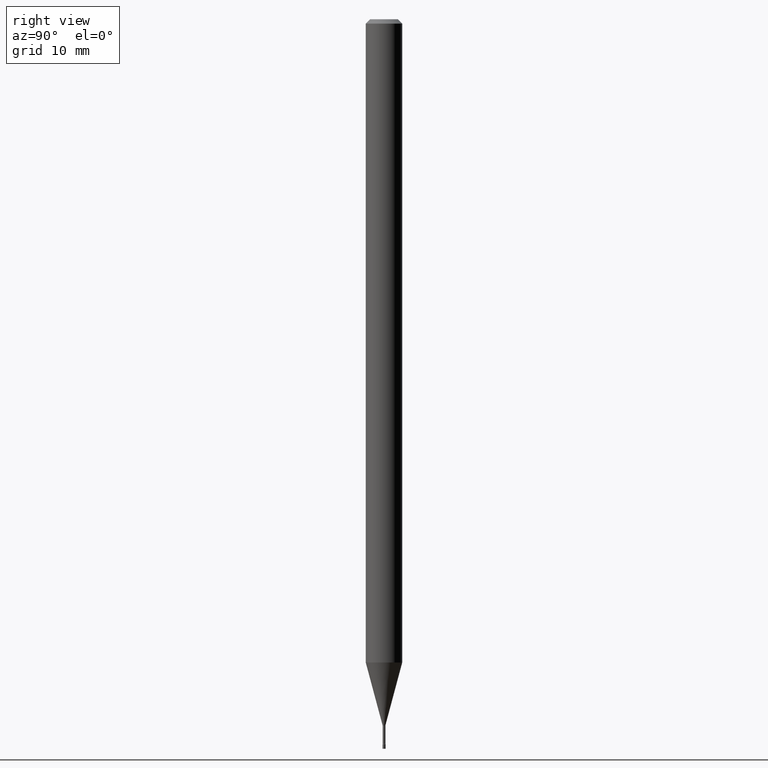
[diagram: clean part render]
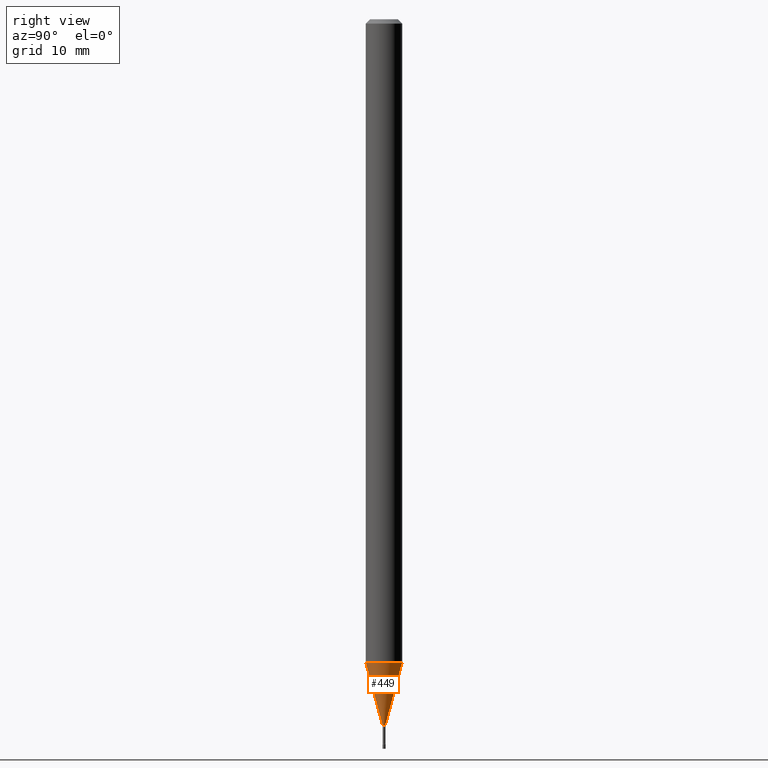
[diagram: same view with one face highlighted and labeled with its STEP entity id]
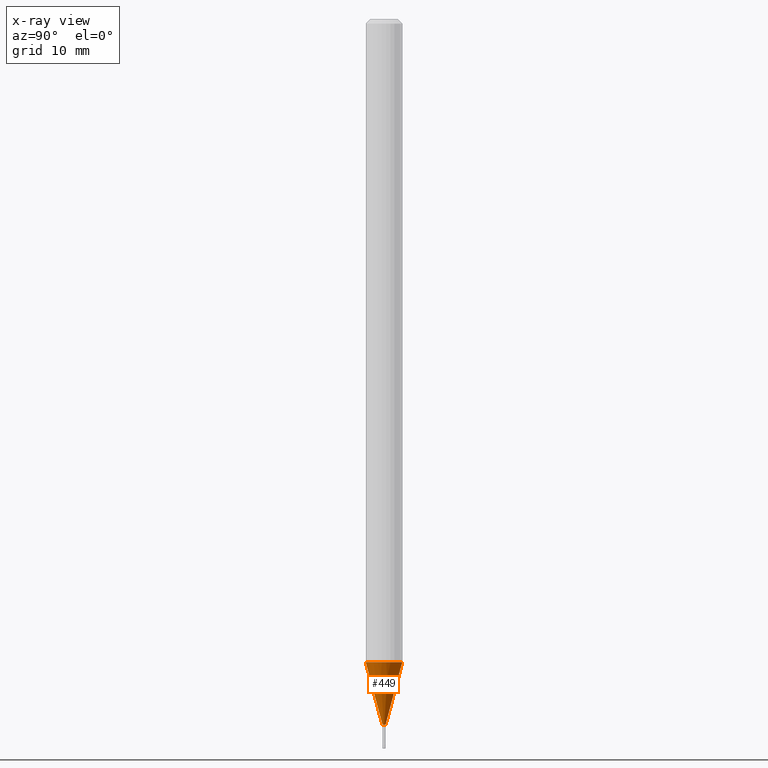
[diagram: x-ray of the same camera — body ghosted, the highlighted face saturated]
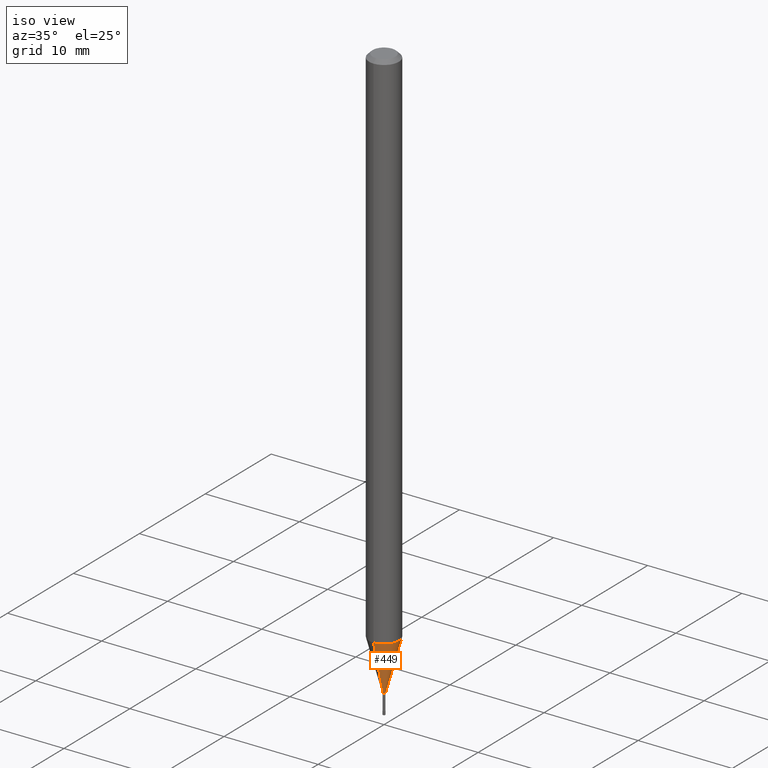
[diagram: same view with one face highlighted and labeled with its STEP entity id]
A machine part, right view. The second image highlights one B-rep face of the part: STEP entity #449.
The next image is the same camera in x-ray: the body ghosted, the highlighted face saturated — about 0% of this face is hidden behind the body in this view.
A second angle (iso view) of the same face is appended — the face is thin or edge-on in the first view.
In plain terms, the highlighted conical surface has half-angle 15 deg.
Its self-contained STEP definition (entity closure, byte-faithful):
#26 = ORIENTED_EDGE ( 'NONE', *, *, #98, .F. ) ;
#30 = CARTESIAN_POINT ( 'NONE',  ( -3.638900483451289349E-17, -0.005211112605672425790, -2.418092501787273196 ) ) ;
#37 = CARTESIAN_POINT ( 'NONE',  ( 3.702718207188347012E-17, 0.005211112605655546064, -2.418092501787273196 ) ) ;
#73 = CARTESIAN_POINT ( 'NONE',  ( 2.405581959610001541E-16, 0.005211112605655546064, -2.418092501787273196 ) ) ;
#98 = EDGE_CURVE ( 'NONE', #486, #292, #480, .T. ) ;
#135 = EDGE_LOOP ( 'NONE', ( #334, #166, #26, #218 ) ) ;
#163 = VERTEX_POINT ( 'NONE', #290 ) ;
#165 = EDGE_CURVE ( 'NONE', #419, #292, #221, .T. ) ;
#166 = ORIENTED_EDGE ( 'NONE', *, *, #165, .T. ) ;
#189 = CONICAL_SURFACE ( 'NONE', #339, 0.005211112605663986361, 0.2617993877991502960 ) ;
#200 = CARTESIAN_POINT ( 'NONE',  ( -4.364351673553377310E-16, -0.06250000000000770217, -2.204287463322519347 ) ) ;
#218 = ORIENTED_EDGE ( 'NONE', *, *, #277, .F. ) ;
#221 = LINE ( 'NONE', #37, #353 ) ;
#230 = CARTESIAN_POINT ( 'NONE',  ( 5.915102992694962294E-29, -8.440242791501723298E-15, -2.418092501787273196 ) ) ;
#234 = VECTOR ( 'NONE', #514, 39.37007874015748143 ) ;
#245 = DIRECTION ( 'NONE',  ( -6.982962677686265922E-15, -1.000000000000000000, 4.370956789862821150E-15 ) ) ;
#258 = CARTESIAN_POINT ( 'NONE',  ( 5.392096192110878266E-29, -7.693965950001622494E-15, -2.204287463322519791 ) ) ;
#277 = EDGE_CURVE ( 'NONE', #163, #486, #418, .T. ) ;
#290 = CARTESIAN_POINT ( 'NONE',  ( -3.638900483451289349E-17, -0.005211112605672425790, -2.418092501787273196 ) ) ;
#292 = VERTEX_POINT ( 'NONE', #502 ) ;
#309 = FACE_OUTER_BOUND ( 'NONE', #135, .T. ) ;
#316 = CARTESIAN_POINT ( 'NONE',  ( 5.915102992694962294E-29, -8.440242791501723298E-15, -2.418092501787273196 ) ) ;
#334 = ORIENTED_EDGE ( 'NONE', *, *, #401, .T. ) ;
#339 = AXIS2_PLACEMENT_3D ( 'NONE', #230, #385, #442 ) ;
#347 = AXIS2_PLACEMENT_3D ( 'NONE', #316, #505, #461 ) ;
#353 = VECTOR ( 'NONE', #508, 39.37007874015748143 ) ;
#385 = DIRECTION ( 'NONE',  ( -2.446185573266101259E-29, 3.490454887587355356E-15, 1.000000000000000000 ) ) ;
#388 = AXIS2_PLACEMENT_3D ( 'NONE', #258, #490, #245 ) ;
#401 = EDGE_CURVE ( 'NONE', #163, #419, #423, .T. ) ;
#418 = LINE ( 'NONE', #30, #234 ) ;
#419 = VERTEX_POINT ( 'NONE', #73 ) ;
#423 = CIRCLE ( 'NONE', #347, 0.005211112605663986361 ) ;
#442 = DIRECTION ( 'NONE',  ( -6.982962677686265922E-15, -1.000000000000000000, 0.000000000000000000 ) ) ;
#449 = ADVANCED_FACE ( 'NONE', ( #309 ), #189, .T. ) ;
#461 = DIRECTION ( 'NONE',  ( -6.982962677686265922E-15, -1.000000000000000000, 0.000000000000000000 ) ) ;
#480 = CIRCLE ( 'NONE', #388, 0.06250000000000000000 ) ;
#486 = VERTEX_POINT ( 'NONE', #200 ) ;
#490 = DIRECTION ( 'NONE',  ( -2.446185573266101259E-29, 3.490454887587355356E-15, 1.000000000000000000 ) ) ;
#502 = CARTESIAN_POINT ( 'NONE',  ( 4.440892098501163573E-16, 0.06249999999999229783, -2.204287463322520235 ) ) ;
#505 = DIRECTION ( 'NONE',  ( -2.446185573266101259E-29, 3.490454887587355356E-15, 1.000000000000000000 ) ) ;
#508 = DIRECTION ( 'NONE',  ( 1.839019923739600315E-15, 0.2588190451025249583, 0.9659258262890670910 ) ) ;
#514 = DIRECTION ( 'NONE',  ( -1.807323732225330139E-15, -0.2588190451025181860, 0.9659258262890689783 ) ) ;